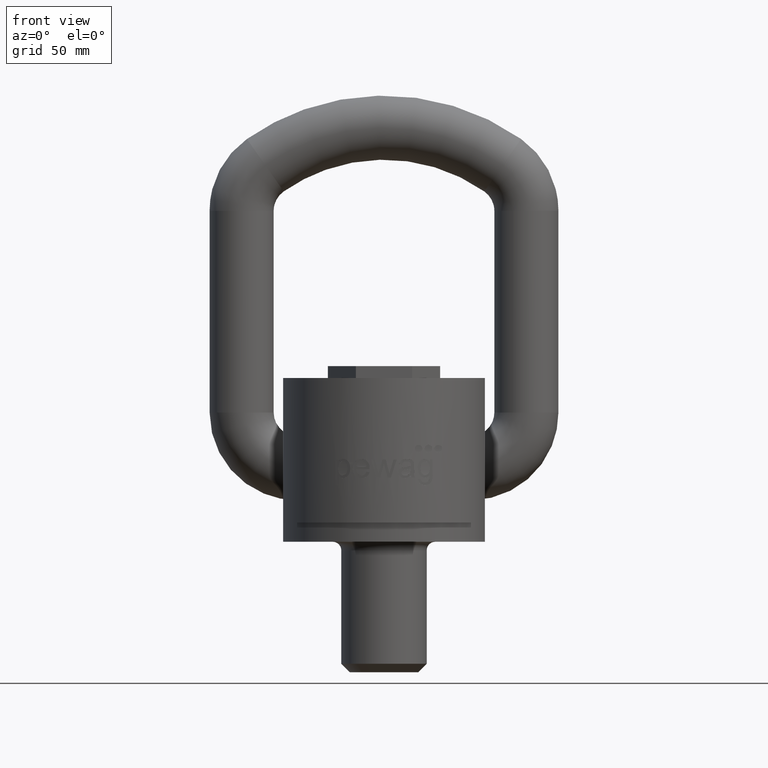
[diagram: clean part render]
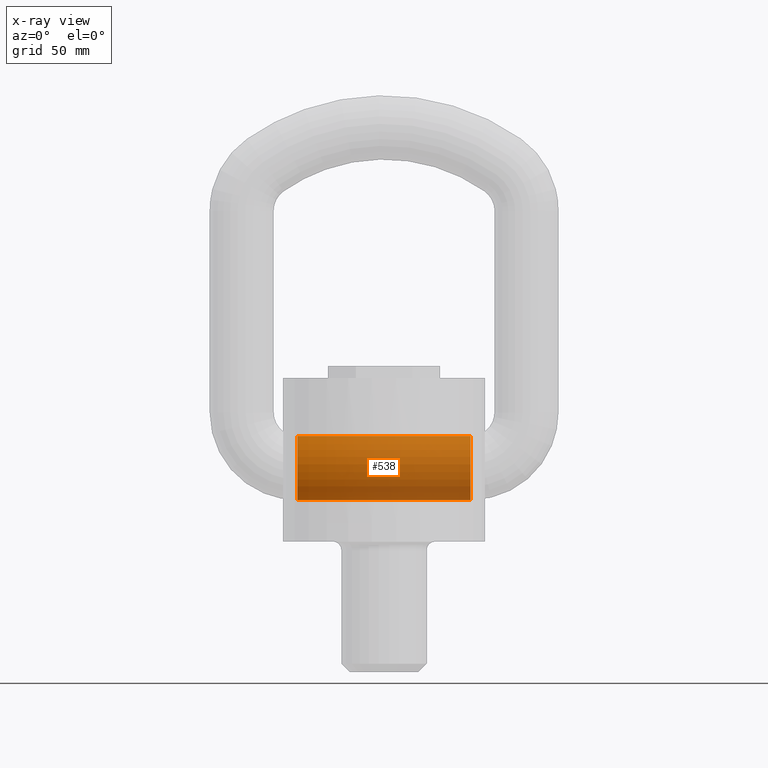
[diagram: x-ray — body ghosted, one internal face saturated and labeled with its STEP entity id]
A machine part, front view, then the same camera in x-ray: the body is ghosted and one INTERNAL B-rep face — a face not visible from any outside direction — is saturated and labeled: STEP entity #538.
In plain terms, the highlighted cylindrical surface (bore or boss wall) has radius 13.5 mm, axis along (1, 0, 0).
Its self-contained STEP definition (entity closure, byte-faithful):
#538=ADVANCED_FACE('',(#619,#620),#560,.T.);
#560=CYLINDRICAL_SURFACE('',#2589,13.5);
#619=FACE_BOUND('',#783,.T.);
#620=FACE_BOUND('',#784,.T.);
#783=EDGE_LOOP('',(#1749));
#784=EDGE_LOOP('',(#1750));
#1133=CIRCLE('',#2585,13.5);
#1135=CIRCLE('',#2588,13.5);
#1749=ORIENTED_EDGE('',*,*,#2281,.T.);
#1750=ORIENTED_EDGE('',*,*,#2279,.F.);
#1968=VERTEX_POINT('',#5088);
#1970=VERTEX_POINT('',#5093);
#2279=EDGE_CURVE('',#1968,#1968,#1133,.T.);
#2281=EDGE_CURVE('',#1970,#1970,#1135,.T.);
#2585=AXIS2_PLACEMENT_3D('',#5087,#3024,#3025);
#2588=AXIS2_PLACEMENT_3D('',#5092,#3030,#3031);
#2589=AXIS2_PLACEMENT_3D('',#5094,#3032,#3033);
#3024=DIRECTION('',(1.,0.,-6.16343852269946E-16));
#3025=DIRECTION('',(-5.13992141030165E-16,0.,-1.));
#3030=DIRECTION('',(1.,0.,-6.16343852269946E-16));
#3031=DIRECTION('',(-5.13992141030165E-16,0.,-1.));
#3032=DIRECTION('',(1.,0.,0.));
#3033=DIRECTION('',(0.,0.,-1.));
#5087=CARTESIAN_POINT('',(36.5,45.,23.));
#5088=CARTESIAN_POINT('',(36.4999999999999,45.,9.49999999999997));
#5092=CARTESIAN_POINT('',(-36.5000000000001,45.,23.));
#5093=CARTESIAN_POINT('',(-36.5000000000001,45.,9.49999999999997));
#5094=CARTESIAN_POINT('',(-36.5000000000001,45.,23.));